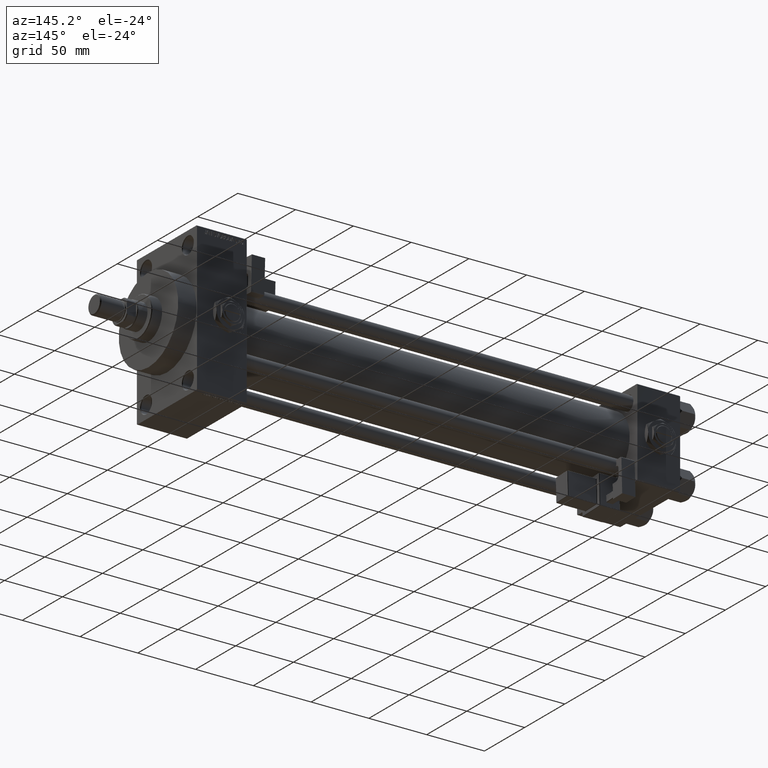
[diagram: clean part render]
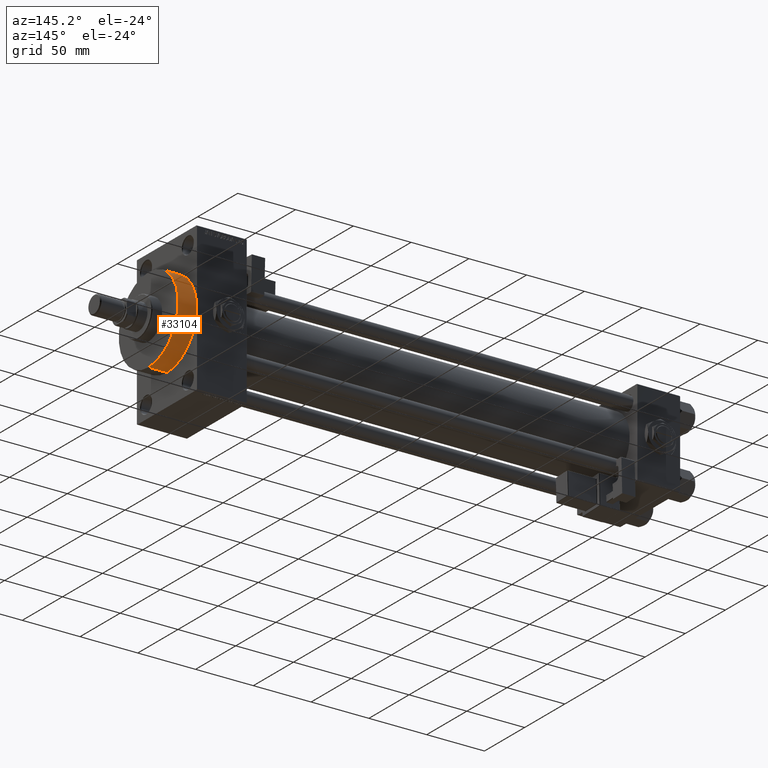
[diagram: same view with one face highlighted and labeled with its STEP entity id]
A machine part, auxiliary view. The second image highlights one B-rep face of the part: STEP entity #33104.
In plain terms, the highlighted cylindrical surface (partial cylindrical patch) has radius 37 mm, axis along (-1, -0, -0).
Its self-contained STEP definition (entity closure, byte-faithful):
#3682 = CARTESIAN_POINT ( 'NONE',  ( 434.0000000000000000, 0.000000000000000000, 0.000000000000000000 ) ) ;
#3936 = CARTESIAN_POINT ( 'NONE',  ( 418.0000000000000000, 0.000000000000000000, 37.00000000000000000 ) ) ;
#3950 = FACE_OUTER_BOUND ( 'NONE', #39401, .T. ) ;
#4742 = CYLINDRICAL_SURFACE ( 'NONE', #27429, 37.00000000000000000 ) ;
#5947 = LINE ( 'NONE', #6461, #29362 ) ;
#6461 = CARTESIAN_POINT ( 'NONE',  ( 434.0000000000000000, 4.531193156845206793E-15, -37.00000000000000000 ) ) ;
#6968 = AXIS2_PLACEMENT_3D ( 'NONE', #15471, #11813, #11293 ) ;
#7623 = DIRECTION ( 'NONE',  ( 0.000000000000000000, 0.000000000000000000, -1.000000000000000000 ) ) ;
#9200 = CARTESIAN_POINT ( 'NONE',  ( 434.0000000000000000, 0.000000000000000000, 37.00000000000000000 ) ) ;
#11293 = DIRECTION ( 'NONE',  ( 0.000000000000000000, 0.000000000000000000, -1.000000000000000000 ) ) ;
#11813 = DIRECTION ( 'NONE',  ( 1.000000000000000000, 0.000000000000000000, 0.000000000000000000 ) ) ;
#12287 = CARTESIAN_POINT ( 'NONE',  ( 434.0000000000000000, 0.000000000000000000, 37.00000000000000000 ) ) ;
#12758 = ORIENTED_EDGE ( 'NONE', *, *, #43037, .F. ) ;
#13079 = LINE ( 'NONE', #12287, #23563 ) ;
#15471 = CARTESIAN_POINT ( 'NONE',  ( 418.0000000000000000, 0.000000000000000000, 0.000000000000000000 ) ) ;
#16007 = DIRECTION ( 'NONE',  ( 1.000000000000000000, 0.000000000000000000, 0.000000000000000000 ) ) ;
#16675 = ORIENTED_EDGE ( 'NONE', *, *, #45052, .F. ) ;
#18110 = VERTEX_POINT ( 'NONE', #28376 ) ;
#23563 = VECTOR ( 'NONE', #44605, 1000.000000000000000 ) ;
#24194 = VERTEX_POINT ( 'NONE', #9200 ) ;
#26293 = EDGE_CURVE ( 'NONE', #18110, #37876, #42230, .T. ) ;
#27429 = AXIS2_PLACEMENT_3D ( 'NONE', #35982, #47834, #43628 ) ;
#28376 = CARTESIAN_POINT ( 'NONE',  ( 418.0000000000000000, 4.531193156845206793E-15, -37.00000000000000000 ) ) ;
#29362 = VECTOR ( 'NONE', #38495, 1000.000000000000000 ) ;
#30221 = CIRCLE ( 'NONE', #41983, 37.00000000000000000 ) ;
#33104 = ADVANCED_FACE ( 'NONE', ( #3950 ), #4742, .T. ) ;
#35982 = CARTESIAN_POINT ( 'NONE',  ( 434.0000000000000000, 0.000000000000000000, 0.000000000000000000 ) ) ;
#37876 = VERTEX_POINT ( 'NONE', #3936 ) ;
#38495 = DIRECTION ( 'NONE',  ( -1.000000000000000000, -0.000000000000000000, -0.000000000000000000 ) ) ;
#39401 = EDGE_LOOP ( 'NONE', ( #12758, #40137, #40856, #16675 ) ) ;
#40137 = ORIENTED_EDGE ( 'NONE', *, *, #42016, .T. ) ;
#40856 = ORIENTED_EDGE ( 'NONE', *, *, #26293, .T. ) ;
#41983 = AXIS2_PLACEMENT_3D ( 'NONE', #3682, #16007, #7623 ) ;
#42016 = EDGE_CURVE ( 'NONE', #49019, #18110, #5947, .T. ) ;
#42230 = CIRCLE ( 'NONE', #6968, 37.00000000000000000 ) ;
#43037 = EDGE_CURVE ( 'NONE', #49019, #24194, #30221, .T. ) ;
#43628 = DIRECTION ( 'NONE',  ( 0.000000000000000000, 0.000000000000000000, 1.000000000000000000 ) ) ;
#44605 = DIRECTION ( 'NONE',  ( -1.000000000000000000, -0.000000000000000000, -0.000000000000000000 ) ) ;
#45052 = EDGE_CURVE ( 'NONE', #24194, #37876, #13079, .T. ) ;
#47834 = DIRECTION ( 'NONE',  ( -1.000000000000000000, -0.000000000000000000, -0.000000000000000000 ) ) ;
#49019 = VERTEX_POINT ( 'NONE', #49847 ) ;
#49847 = CARTESIAN_POINT ( 'NONE',  ( 434.0000000000000000, 4.531193156845206793E-15, -37.00000000000000000 ) ) ;